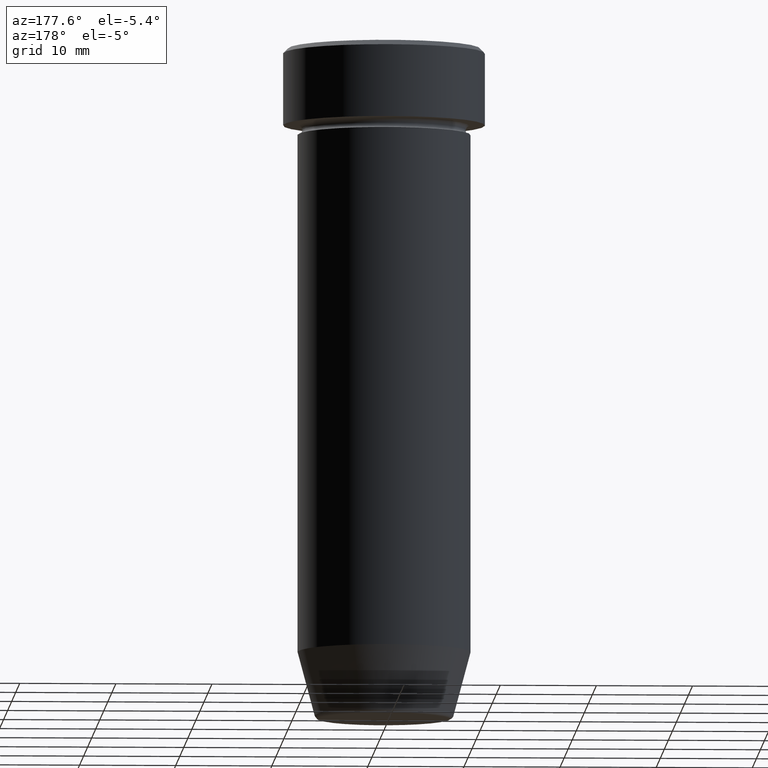
[diagram: clean part render]
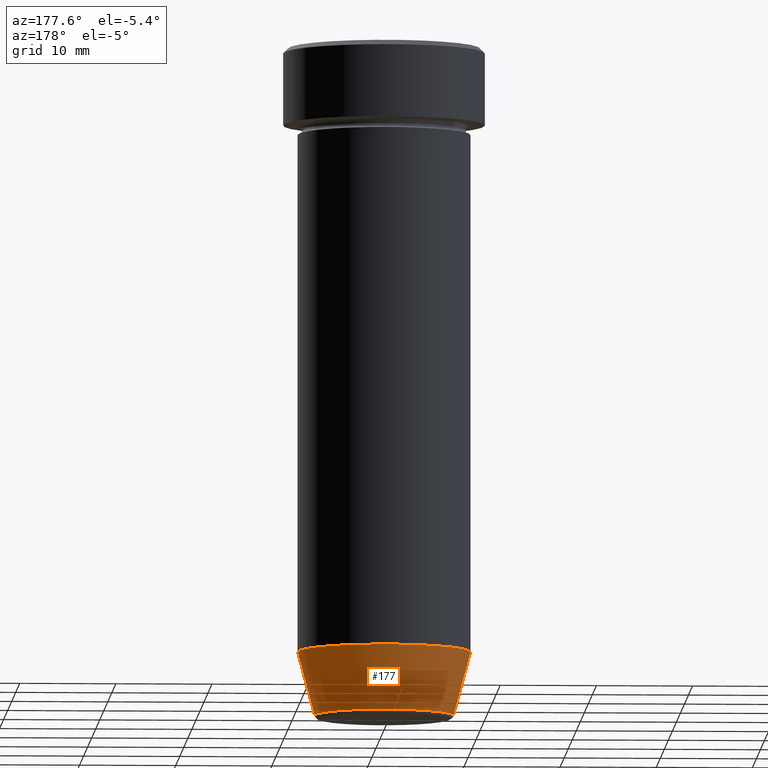
[diagram: same view with one face highlighted and labeled with its STEP entity id]
A machine part, auxiliary view. The second image highlights one B-rep face of the part: STEP entity #177.
In plain terms, the highlighted conical surface has half-angle 15 deg.
Its self-contained STEP definition (entity closure, byte-faithful):
#15 = AXIS2_PLACEMENT_3D ( 'NONE', #400, #403, #258 ) ;
#32 = CARTESIAN_POINT ( 'NONE',  ( -9.000000000000000000, 1.102182119232617714E-15, -63.00000000000000000 ) ) ;
#39 = EDGE_LOOP ( 'NONE', ( #353, #228, #390, #304 ) ) ;
#40 = DIRECTION ( 'NONE',  ( -1.000000000000000000, 0.000000000000000000, 0.000000000000000000 ) ) ;
#50 = CIRCLE ( 'NONE', #15, 9.000000000000000000 ) ;
#58 = VERTEX_POINT ( 'NONE', #240 ) ;
#85 = DIRECTION ( 'NONE',  ( -0.000000000000000000, -0.000000000000000000, 1.000000000000000000 ) ) ;
#87 = CARTESIAN_POINT ( 'NONE',  ( 7.124355652982132803, 0.000000000000000000, -70.00000000000000000 ) ) ;
#105 = CARTESIAN_POINT ( 'NONE',  ( 0.000000000000000000, 0.000000000000000000, -70.00000000000000000 ) ) ;
#120 = CARTESIAN_POINT ( 'NONE',  ( 7.223655072137190380, 0.000000000000000000, -69.62940952255125637 ) ) ;
#137 = CARTESIAN_POINT ( 'NONE',  ( 0.000000000000000000, 0.000000000000000000, -69.62940952255125637 ) ) ;
#151 = EDGE_CURVE ( 'NONE', #58, #289, #50, .T. ) ;
#159 = AXIS2_PLACEMENT_3D ( 'NONE', #137, #85, #40 ) ;
#177 = ADVANCED_FACE ( 'NONE', ( #345 ), #431, .T. ) ;
#228 = ORIENTED_EDGE ( 'NONE', *, *, #595, .T. ) ;
#233 = LINE ( 'NONE', #364, #380 ) ;
#240 = CARTESIAN_POINT ( 'NONE',  ( 9.000000000000000000, 0.000000000000000000, -63.00000000000000000 ) ) ;
#246 = VECTOR ( 'NONE', #553, 1000.000000000000114 ) ;
#258 = DIRECTION ( 'NONE',  ( 1.000000000000000000, 0.000000000000000000, 0.000000000000000000 ) ) ;
#289 = VERTEX_POINT ( 'NONE', #32 ) ;
#304 = ORIENTED_EDGE ( 'NONE', *, *, #463, .F. ) ;
#305 = VERTEX_POINT ( 'NONE', #120 ) ;
#318 = CARTESIAN_POINT ( 'NONE',  ( -7.223655072137190380, 9.934123627281765110E-16, -69.62940952255125637 ) ) ;
#345 = FACE_OUTER_BOUND ( 'NONE', #39, .T. ) ;
#351 = DIRECTION ( 'NONE',  ( -0.000000000000000000, -0.000000000000000000, 1.000000000000000000 ) ) ;
#353 = ORIENTED_EDGE ( 'NONE', *, *, #514, .T. ) ;
#358 = AXIS2_PLACEMENT_3D ( 'NONE', #105, #351, #532 ) ;
#364 = CARTESIAN_POINT ( 'NONE',  ( -7.124355652982132803, 8.724819346411920171E-16, -70.00000000000000000 ) ) ;
#376 = LINE ( 'NONE', #87, #246 ) ;
#380 = VECTOR ( 'NONE', #458, 1000.000000000000114 ) ;
#390 = ORIENTED_EDGE ( 'NONE', *, *, #151, .F. ) ;
#399 = VERTEX_POINT ( 'NONE', #318 ) ;
#400 = CARTESIAN_POINT ( 'NONE',  ( 0.000000000000000000, 0.000000000000000000, -63.00000000000000000 ) ) ;
#403 = DIRECTION ( 'NONE',  ( -0.000000000000000000, -0.000000000000000000, 1.000000000000000000 ) ) ;
#431 = CONICAL_SURFACE ( 'NONE', #358, 7.124355652982132803, 0.2617993877991502405 ) ;
#458 = DIRECTION ( 'NONE',  ( -0.2588190451025214611, 3.169619151431774186E-17, 0.9659258262890679791 ) ) ;
#463 = EDGE_CURVE ( 'NONE', #305, #58, #376, .T. ) ;
#496 = CIRCLE ( 'NONE', #159, 7.223655072137190380 ) ;
#514 = EDGE_CURVE ( 'NONE', #305, #399, #496, .T. ) ;
#532 = DIRECTION ( 'NONE',  ( 1.000000000000000000, 0.000000000000000000, 0.000000000000000000 ) ) ;
#553 = DIRECTION ( 'NONE',  ( 0.2588190451025214611, 0.000000000000000000, 0.9659258262890679791 ) ) ;
#595 = EDGE_CURVE ( 'NONE', #399, #289, #233, .T. ) ;